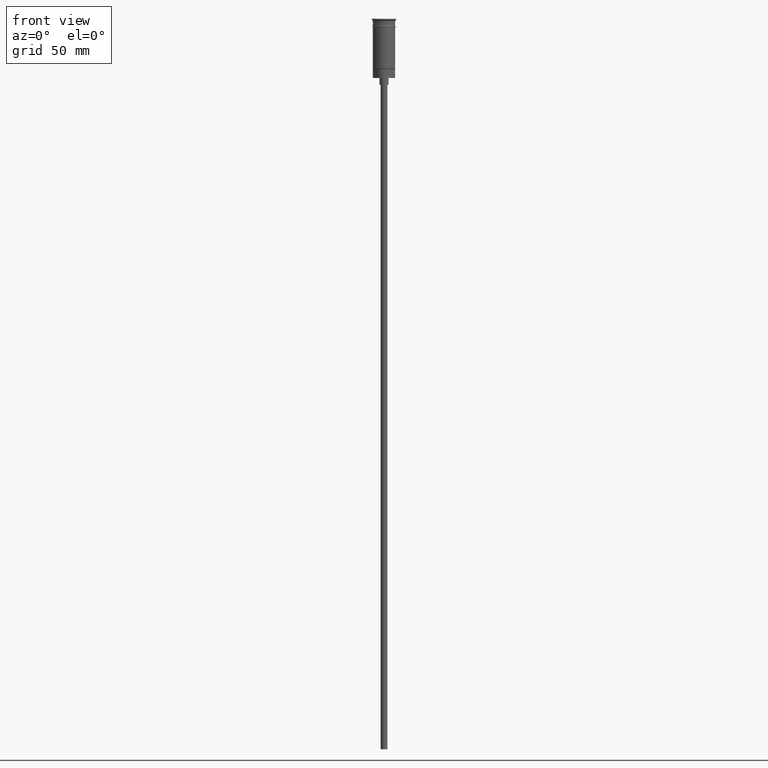
[diagram: clean part render]
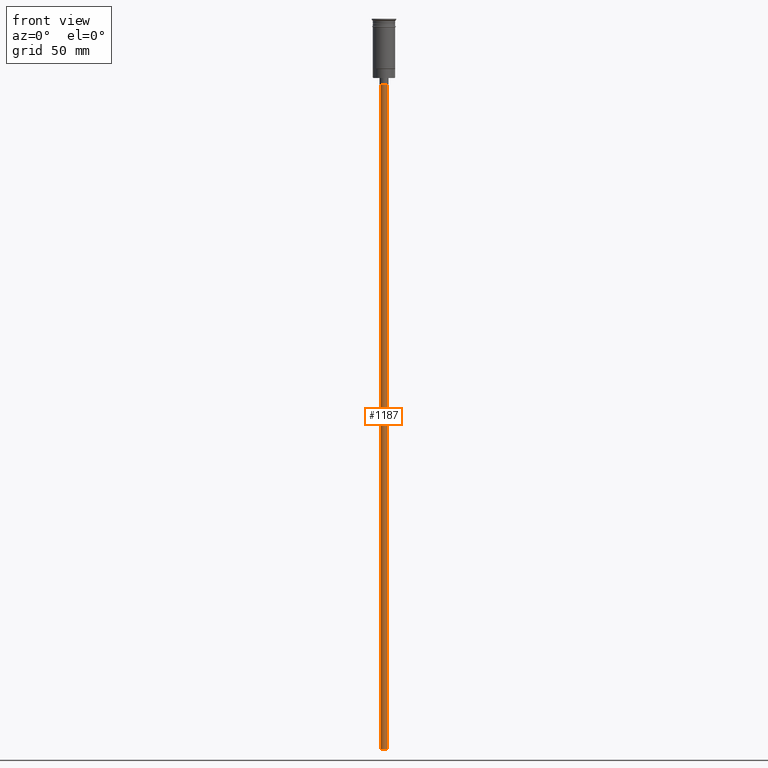
[diagram: same view with one face highlighted and labeled with its STEP entity id]
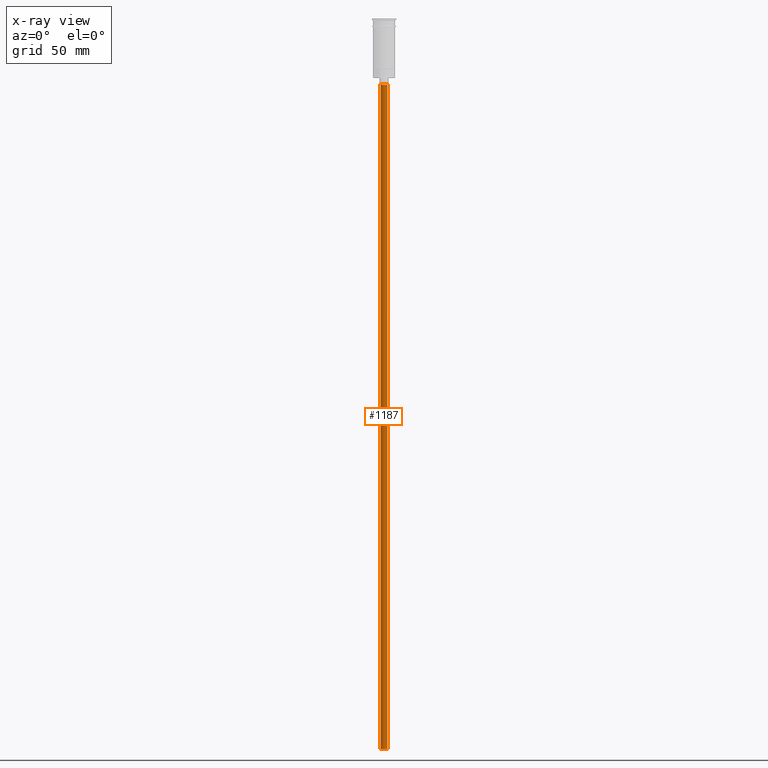
[diagram: x-ray of the same camera — body ghosted, the highlighted face saturated]
A machine part, front view. The second image highlights one B-rep face of the part: STEP entity #1187.
The next image is the same camera in x-ray: the body ghosted, the highlighted face saturated — about 0% of this face is hidden behind the body in this view.
In plain terms, the highlighted cylindrical surface (edge-blend (fillet) strip) has radius 1.5 mm, axis along (-0, -0, 1).
Its self-contained STEP definition (entity closure, byte-faithful):
#10 = CARTESIAN_POINT ( 'NONE',  ( 0.000000000000000000, 0.000000000000000000, -326.5000000000000000 ) ) ;
#29 = EDGE_CURVE ( 'NONE', #1407, #956, #1579, .T. ) ;
#40 = CARTESIAN_POINT ( 'NONE',  ( 1.500000000000000222, 0.000000000000000000, -326.5000000000000000 ) ) ;
#67 = EDGE_CURVE ( 'NONE', #1407, #677, #874, .T. ) ;
#90 = AXIS2_PLACEMENT_3D ( 'NONE', #1056, #384, #433 ) ;
#128 = CARTESIAN_POINT ( 'NONE',  ( -1.500000000000000222, 1.836970198721030181E-16, -29.50000000000000000 ) ) ;
#152 = ORIENTED_EDGE ( 'NONE', *, *, #1140, .F. ) ;
#207 = DIRECTION ( 'NONE',  ( -0.000000000000000000, -0.000000000000000000, 1.000000000000000000 ) ) ;
#239 = DIRECTION ( 'NONE',  ( -0.000000000000000000, -0.000000000000000000, 1.000000000000000000 ) ) ;
#384 = DIRECTION ( 'NONE',  ( 0.000000000000000000, 0.000000000000000000, -1.000000000000000000 ) ) ;
#402 = VERTEX_POINT ( 'NONE', #128 ) ;
#419 = ORIENTED_EDGE ( 'NONE', *, *, #29, .T. ) ;
#433 = DIRECTION ( 'NONE',  ( -1.000000000000000000, 0.000000000000000000, 0.000000000000000000 ) ) ;
#459 = CARTESIAN_POINT ( 'NONE',  ( 0.000000000000000000, 0.000000000000000000, -326.5000000000000000 ) ) ;
#501 = DIRECTION ( 'NONE',  ( -1.000000000000000000, 0.000000000000000000, 0.000000000000000000 ) ) ;
#552 = AXIS2_PLACEMENT_3D ( 'NONE', #459, #591, #1198 ) ;
#572 = CARTESIAN_POINT ( 'NONE',  ( -1.500000000000000222, 1.836970198721030181E-16, -326.5000000000000000 ) ) ;
#591 = DIRECTION ( 'NONE',  ( -0.000000000000000000, -0.000000000000000000, 1.000000000000000000 ) ) ;
#609 = DIRECTION ( 'NONE',  ( 0.000000000000000000, 0.000000000000000000, -1.000000000000000000 ) ) ;
#646 = EDGE_CURVE ( 'NONE', #956, #402, #1254, .T. ) ;
#672 = ORIENTED_EDGE ( 'NONE', *, *, #646, .T. ) ;
#677 = VERTEX_POINT ( 'NONE', #1122 ) ;
#714 = AXIS2_PLACEMENT_3D ( 'NONE', #10, #609, #501 ) ;
#838 = ORIENTED_EDGE ( 'NONE', *, *, #67, .F. ) ;
#874 = CIRCLE ( 'NONE', #714, 1.500000000000000222 ) ;
#888 = CARTESIAN_POINT ( 'NONE',  ( 1.500000000000000222, 0.000000000000000000, -29.50000000000000000 ) ) ;
#956 = VERTEX_POINT ( 'NONE', #888 ) ;
#979 = EDGE_LOOP ( 'NONE', ( #152, #838, #419, #672 ) ) ;
#1056 = CARTESIAN_POINT ( 'NONE',  ( 0.000000000000000000, 0.000000000000000000, -29.50000000000000000 ) ) ;
#1067 = VECTOR ( 'NONE', #207, 1000.000000000000000 ) ;
#1122 = CARTESIAN_POINT ( 'NONE',  ( -1.500000000000000222, 1.836970198721030181E-16, -326.5000000000000000 ) ) ;
#1140 = EDGE_CURVE ( 'NONE', #677, #402, #1451, .T. ) ;
#1187 = ADVANCED_FACE ( 'NONE', ( #1306 ), #1193, .T. ) ;
#1193 = CYLINDRICAL_SURFACE ( 'NONE', #552, 1.500000000000000222 ) ;
#1198 = DIRECTION ( 'NONE',  ( 1.000000000000000000, 0.000000000000000000, 0.000000000000000000 ) ) ;
#1254 = CIRCLE ( 'NONE', #90, 1.500000000000000222 ) ;
#1306 = FACE_OUTER_BOUND ( 'NONE', #979, .T. ) ;
#1407 = VERTEX_POINT ( 'NONE', #40 ) ;
#1451 = LINE ( 'NONE', #572, #1067 ) ;
#1562 = VECTOR ( 'NONE', #239, 1000.000000000000000 ) ;
#1579 = LINE ( 'NONE', #1586, #1562 ) ;
#1586 = CARTESIAN_POINT ( 'NONE',  ( 1.500000000000000222, 0.000000000000000000, -326.5000000000000000 ) ) ;